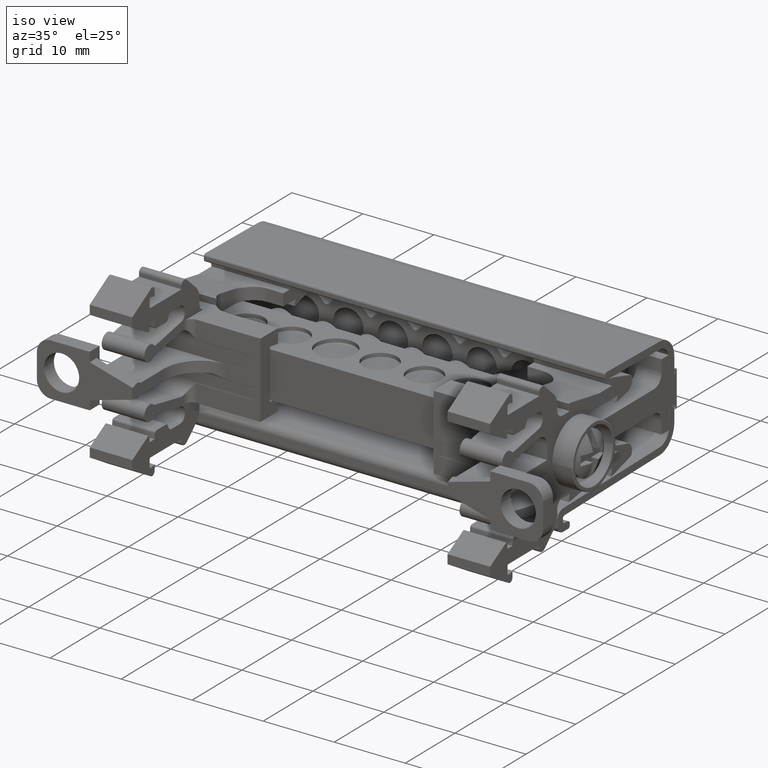
[diagram: clean part render]
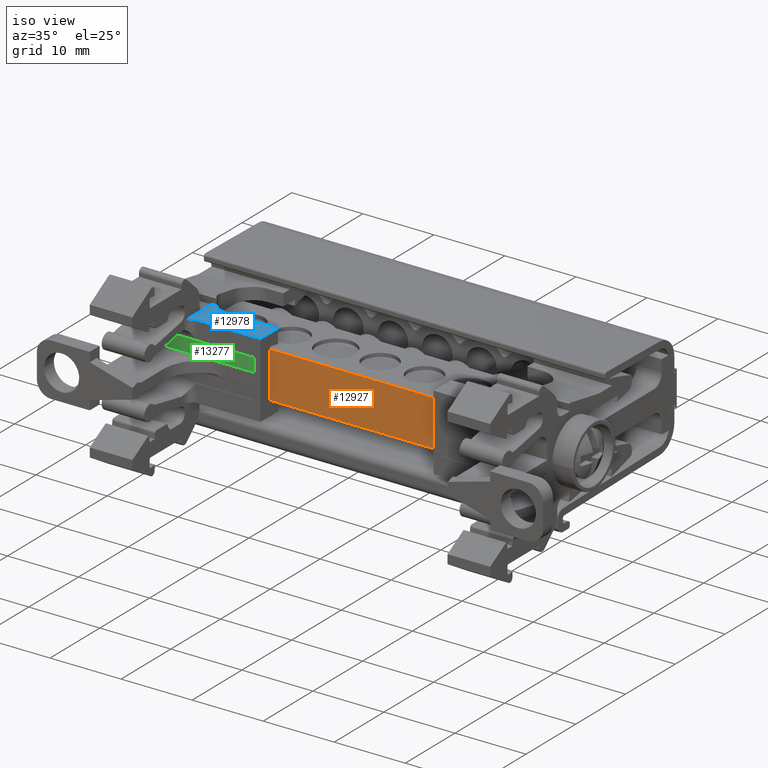
[diagram: same view with three faces highlighted in distinct colors, each labeled with its STEP entity id]
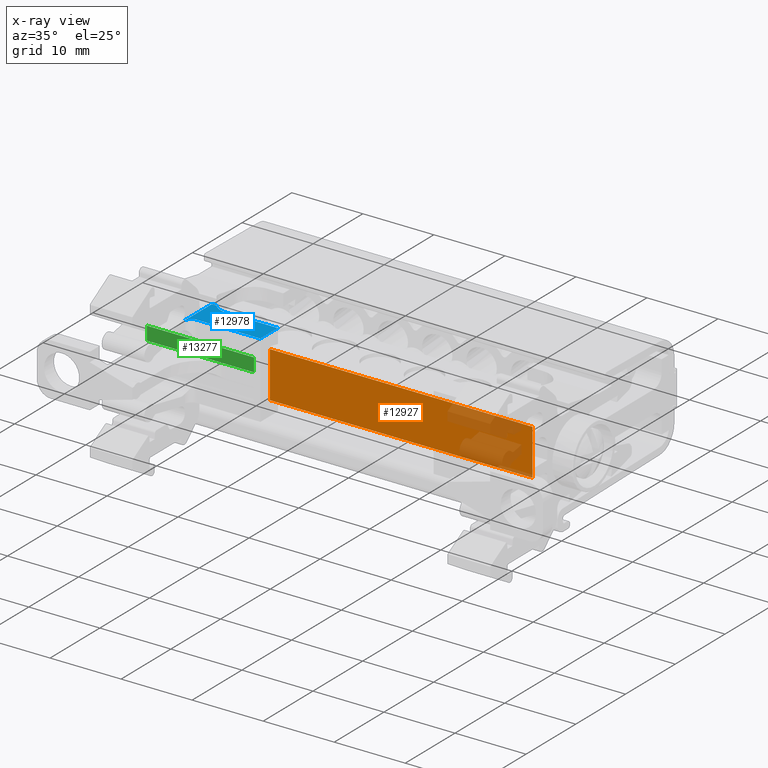
[diagram: x-ray of the same camera — body ghosted, the three highlighted faces saturated]
A machine part, iso view with three faces highlighted in distinct colors.
The next image is the same camera in x-ray (body ghosted, the three faces saturated) — at least one of them is partly hidden behind the body in this view.
Their STEP definitions:

[orange] entity #12927 — the highlighted planar face has unit normal (-0, 1, 0).
#2868 = CARTESIAN_POINT ( 'NONE',  ( -30.30539649368613200, -45.41391012922301900, 99.25723811290633600 ) ) ;
#2884 = CARTESIAN_POINT ( 'NONE',  ( -67.27539649368665700, -45.41391012922269300, 99.25723811290677600 ) ) ;
#2897 = CARTESIAN_POINT ( 'NONE',  ( -30.30539649368614300, -45.41391012922206000, 92.75723811290636400 ) ) ;
#2973 = CARTESIAN_POINT ( 'NONE',  ( -67.27539649368664200, -45.41391012922238000, 92.75723811290680500 ) ) ;
#7270 = DIRECTION ( 'NONE',  ( -0.0000000000000000000, 1.302377009656390000E-013, -1.000000000000000000 ) ) ;
#7282 = LINE ( 'NONE', #7287, #9891 ) ;
#7287 = CARTESIAN_POINT ( 'NONE',  ( -30.30539649368613200, -45.41391012922277800, 99.25723811290686200 ) ) ;
#9891 = VECTOR ( 'NONE', #7270, 1000.000000000000000 ) ;
#10002 = VECTOR ( 'NONE', #27872, 1000.000000000000000 ) ;
#10009 = VECTOR ( 'NONE', #27193, 1000.000000000000000 ) ;
#10021 = VECTOR ( 'NONE', #28272, 1000.000000000000000 ) ;
#10702 = AXIS2_PLACEMENT_3D ( 'NONE', #29458, #29470, #29442 ) ;
#12927 = ADVANCED_FACE ( 'NONE', ( #29457 ), #29452, .F. ) ;
#15646 = EDGE_CURVE ( 'NONE', #24335, #24342, #7282, .T. ) ;
#15768 = EDGE_CURVE ( 'NONE', #24342, #24391, #27892, .T. ) ;
#15836 = EDGE_CURVE ( 'NONE', #24335, #24369, #28250, .T. ) ;
#15860 = EDGE_CURVE ( 'NONE', #24391, #24369, #27187, .T. ) ;
#19278 = EDGE_LOOP ( 'NONE', ( #25102, #25191, #25137, #25222 ) ) ;
#24335 = VERTEX_POINT ( 'NONE', #2868 ) ;
#24342 = VERTEX_POINT ( 'NONE', #2897 ) ;
#24369 = VERTEX_POINT ( 'NONE', #2884 ) ;
#24391 = VERTEX_POINT ( 'NONE', #2973 ) ;
#25102 = ORIENTED_EDGE ( 'NONE', *, *, #15768, .F. ) ;
#25137 = ORIENTED_EDGE ( 'NONE', *, *, #15836, .T. ) ;
#25191 = ORIENTED_EDGE ( 'NONE', *, *, #15646, .F. ) ;
#25222 = ORIENTED_EDGE ( 'NONE', *, *, #15860, .F. ) ;
#27187 = LINE ( 'NONE', #27191, #10009 ) ;
#27191 = CARTESIAN_POINT ( 'NONE',  ( -67.27539649368665700, -45.41391012922245800, 99.35113534996816000 ) ) ;
#27193 = DIRECTION ( 'NONE',  ( -2.589419078425441900E-015, -2.909484798123462100E-029, 1.000000000000000000 ) ) ;
#27872 = DIRECTION ( 'NONE',  ( -1.000000000000000000, -1.432825211818514800E-027, 1.100161628464666200E-014 ) ) ;
#27892 = LINE ( 'NONE', #27920, #10002 ) ;
#27920 = CARTESIAN_POINT ( 'NONE',  ( -79.50539649368482700, -45.41391012922218800, 92.75723811290691900 ) ) ;
#28250 = LINE ( 'NONE', #28255, #10021 ) ;
#28255 = CARTESIAN_POINT ( 'NONE',  ( -79.50539649368472800, -45.41391012922313300, 99.25723811290686200 ) ) ;
#28272 = DIRECTION ( 'NONE',  ( -1.000000000000000000, -1.432825211818514800E-027, 1.100161628464666200E-014 ) ) ;
#29442 = DIRECTION ( 'NONE',  ( 0.0000000000000000000, -1.302377009656390000E-013, 1.000000000000000000 ) ) ;
#29452 = PLANE ( 'NONE',  #10702 ) ;
#29457 = FACE_OUTER_BOUND ( 'NONE', #19278, .T. ) ;
#29458 = CARTESIAN_POINT ( 'NONE',  ( -79.50539649368462800, -45.41391012922331800, 99.25723811290686200 ) ) ;
#29470 = DIRECTION ( 'NONE',  ( -1.100161628464522500E-014, 1.000000000000000000, 1.302377009656390000E-013 ) ) ;

[blue] entity #12978 — the highlighted planar face has unit normal (-0, 0, 1).
#2791 = CARTESIAN_POINT ( 'NONE',  ( -77.27539649368678500, -42.80570166464866600, 101.3154422156379900 ) ) ;
#2806 = CARTESIAN_POINT ( 'NONE',  ( -77.27539649368655700, -44.59739654058903100, 101.3154422156382400 ) ) ;
#2883 = CARTESIAN_POINT ( 'NONE',  ( -67.27539649368662800, -47.31558989761871500, 101.3154422156382000 ) ) ;
#2894 = CARTESIAN_POINT ( 'NONE',  ( -74.50339649368673600, -43.78758989761734500, 101.3154422156381300 ) ) ;
#2900 = CARTESIAN_POINT ( 'NONE',  ( -76.26739649368663300, -47.31558989761842300, 101.3154422156383600 ) ) ;
#2901 = CARTESIAN_POINT ( 'NONE',  ( -77.27539649368641500, -48.32358989761763000, 101.3154422156386300 ) ) ;
#2905 = CARTESIAN_POINT ( 'NONE',  ( -67.27539649368664200, -43.78758989761751500, 101.3154422156381400 ) ) ;
#2912 = CARTESIAN_POINT ( 'NONE',  ( -76.61987561277477700, -42.80570166464865900, 101.3154422156379700 ) ) ;
#9805 = VECTOR ( 'NONE', #16329, 1000.000000000000000 ) ;
#9897 = VECTOR ( 'NONE', #27810, 1000.000000000000000 ) ;
#9949 = VECTOR ( 'NONE', #27935, 1000.000000000000000 ) ;
#9969 = VECTOR ( 'NONE', #28145, 1000.000000000000000 ) ;
#9978 = VECTOR ( 'NONE', #27912, 1000.000000000000000 ) ;
#10041 = VECTOR ( 'NONE', #27134, 1000.000000000000000 ) ;
#10756 = AXIS2_PLACEMENT_3D ( 'NONE', #28555, #28571, #28598 ) ;
#12978 = ADVANCED_FACE ( 'NONE', ( #28554 ), #28582, .T. ) ;
#15468 = EDGE_CURVE ( 'NONE', #24251, #24285, #16323, .T. ) ;
#15740 = EDGE_CURVE ( 'NONE', #24350, #24251, #27781, .T. ) ;
#15766 = EDGE_CURVE ( 'NONE', #24364, #24360, #27890, .T. ) ;
#15772 = EDGE_CURVE ( 'NONE', #24364, #24365, #27941, .T. ) ;
#15808 = EDGE_CURVE ( 'NONE', #24365, #24350, #18345, .T. ) ;
#15823 = EDGE_CURVE ( 'NONE', #24360, #24349, #28179, .T. ) ;
#15844 = EDGE_CURVE ( 'NONE', #24354, #24285, #27097, .T. ) ;
#15849 = EDGE_CURVE ( 'NONE', #24354, #24349, #18313, .T. ) ;
#16297 = CARTESIAN_POINT ( 'NONE',  ( -77.27539649368678500, -49.67006088806910900, 101.3154422156389100 ) ) ;
#16323 = LINE ( 'NONE', #16297, #9805 ) ;
#16329 = DIRECTION ( 'NONE',  ( 0.0000000000000000000, -1.000000000000000000, 1.383348239789809800E-013 ) ) ;
#18313 = B_SPLINE_CURVE_WITH_KNOTS ( 'NONE', 3,
 ( #27099, #27140, #27107, #27110, #27116, #27117, #27177, #27188, #27164, #27154, #27145, #27189, #27167, #27173, #27186, #27143, #27155, #27159 ),
 .UNSPECIFIED., .F., .F.,
 ( 4, 1, 1, 2, 2, 2, 1, 1, 2, 2, 4 ),
 ( 0.0000000000000000000, 0.1249999999999256200, 0.1874999999998977800, 0.2187499999998942800, 0.2499999999998908100, 0.4999999999998696600, 0.6249999999998634400, 0.6874999999998496800, 0.7187499999998540100, 0.7499999999998584500, 1.000000000000000000 ),
 .UNSPECIFIED. ) ;
#18345 = B_SPLINE_CURVE_WITH_KNOTS ( 'NONE', 3,
 ( #28065, #28057, #28024, #28025, #28067, #28042 ),
 .UNSPECIFIED., .F., .F.,
 ( 4, 2, 4 ),
 ( 0.0000000000000000000, 0.5000000000000000000, 1.000000000000000000 ),
 .UNSPECIFIED. ) ;
#19329 = EDGE_LOOP ( 'NONE', ( #25107, #25113, #25108, #25123, #25213, #25115, #25119, #25146 ) ) ;
#24251 = VERTEX_POINT ( 'NONE', #2791 ) ;
#24285 = VERTEX_POINT ( 'NONE', #2806 ) ;
#24349 = VERTEX_POINT ( 'NONE', #2900 ) ;
#24350 = VERTEX_POINT ( 'NONE', #2912 ) ;
#24354 = VERTEX_POINT ( 'NONE', #2901 ) ;
#24360 = VERTEX_POINT ( 'NONE', #2883 ) ;
#24364 = VERTEX_POINT ( 'NONE', #2905 ) ;
#24365 = VERTEX_POINT ( 'NONE', #2894 ) ;
#25107 = ORIENTED_EDGE ( 'NONE', *, *, #15844, .F. ) ;
#25108 = ORIENTED_EDGE ( 'NONE', *, *, #15823, .F. ) ;
#25113 = ORIENTED_EDGE ( 'NONE', *, *, #15849, .T. ) ;
#25115 = ORIENTED_EDGE ( 'NONE', *, *, #15808, .T. ) ;
#25119 = ORIENTED_EDGE ( 'NONE', *, *, #15740, .T. ) ;
#25123 = ORIENTED_EDGE ( 'NONE', *, *, #15766, .F. ) ;
#25146 = ORIENTED_EDGE ( 'NONE', *, *, #15468, .T. ) ;
#25213 = ORIENTED_EDGE ( 'NONE', *, *, #15772, .T. ) ;
#27097 = LINE ( 'NONE', #27098, #10041 ) ;
#27098 = CARTESIAN_POINT ( 'NONE',  ( -77.27539649368624500, -50.22354764343166500, 101.3154422156385700 ) ) ;
#27099 = CARTESIAN_POINT ( 'NONE',  ( -77.27539649368641500, -48.32358989761763000, 101.3154422156386300 ) ) ;
#27107 = CARTESIAN_POINT ( 'NONE',  ( -77.26632231828985200, -48.16475929203948400, 101.3154422156387300 ) ) ;
#27110 = CARTESIAN_POINT ( 'NONE',  ( -77.24057639426293100, -48.05759715431879900, 101.3154422156386800 ) ) ;
#27116 = CARTESIAN_POINT ( 'NONE',  ( -77.22626148676187100, -48.01235047829671000, 101.3154422156387100 ) ) ;
#27117 = CARTESIAN_POINT ( 'NONE',  ( -77.21598911730313800, -47.98233712859966000, 101.3154422156387000 ) ) ;
#27134 = DIRECTION ( 'NONE',  ( -2.223766850332527500E-014, 1.000000000000000000, 0.0000000000000000000 ) ) ;
#27140 = CARTESIAN_POINT ( 'NONE',  ( -77.27526649292620700, -48.25933237066144000, 101.3154422156388300 ) ) ;
#27143 = CARTESIAN_POINT ( 'NONE',  ( -76.52028961594165000, -47.33944209680681300, 101.3154422156386300 ) ) ;
#27145 = CARTESIAN_POINT ( 'NONE',  ( -76.85185867120826200, -47.49700812073623300, 101.3154422156385800 ) ) ;
#27154 = CARTESIAN_POINT ( 'NONE',  ( -76.93125387947138400, -47.56182039364382100, 101.3154422156386100 ) ) ;
#27155 = CARTESIAN_POINT ( 'NONE',  ( -76.39660979352883900, -47.31585096596403200, 101.3154422156386100 ) ) ;
#27159 = CARTESIAN_POINT ( 'NONE',  ( -76.26739649368663300, -47.31558989761842300, 101.3154422156383600 ) ) ;
#27164 = CARTESIAN_POINT ( 'NONE',  ( -77.07797262842507300, -47.70883799925677200, 101.3154422156386500 ) ) ;
#27167 = CARTESIAN_POINT ( 'NONE',  ( -76.70218030196755900, -47.41399018934951900, 101.3154422156386300 ) ) ;
#27173 = CARTESIAN_POINT ( 'NONE',  ( -76.67068537105795700, -47.39963320662937500, 101.3154422156386300 ) ) ;
#27177 = CARTESIAN_POINT ( 'NONE',  ( -77.21098181208017800, -47.96865575854717900, 101.3154422156386700 ) ) ;
#27186 = CARTESIAN_POINT ( 'NONE',  ( -76.65320425404796400, -47.39222843931408800, 101.3154422156386100 ) ) ;
#27188 = CARTESIAN_POINT ( 'NONE',  ( -77.15375341377539100, -47.82370780503478600, 101.3154422156386700 ) ) ;
#27189 = CARTESIAN_POINT ( 'NONE',  ( -76.74866821910863700, -47.43661272966707500, 101.3154422156386300 ) ) ;
#27781 = LINE ( 'NONE', #27783, #9897 ) ;
#27783 = CARTESIAN_POINT ( 'NONE',  ( 0.3506835063133428900, -42.80570166464865900, 101.3154422156381700 ) ) ;
#27810 = DIRECTION ( 'NONE',  ( -1.000000000000000000, -3.582068324220139400E-028, -2.589419078426998300E-015 ) ) ;
#27873 = CARTESIAN_POINT ( 'NONE',  ( -67.27539649368665700, -45.09798989761764400, 101.3154422156381700 ) ) ;
#27890 = LINE ( 'NONE', #27873, #9978 ) ;
#27912 = DIRECTION ( 'NONE',  ( 1.123605221868004500E-014, -1.000000000000000000, -0.0000000000000000000 ) ) ;
#27935 = DIRECTION ( 'NONE',  ( -1.000000000000000000, -3.582068324220139400E-028, -2.589419078426998300E-015 ) ) ;
#27941 = LINE ( 'NONE', #27952, #9949 ) ;
#27952 = CARTESIAN_POINT ( 'NONE',  ( 0.3506835063133428900, -43.78758989761743700, 101.3154422156382900 ) ) ;
#28024 = CARTESIAN_POINT ( 'NONE',  ( -75.30096214683675300, -43.70118815242754100, 101.3154422156381300 ) ) ;
#28025 = CARTESIAN_POINT ( 'NONE',  ( -76.03898072075833200, -43.35914143540855300, 101.3154422156380400 ) ) ;
#28042 = CARTESIAN_POINT ( 'NONE',  ( -76.61987561277477700, -42.80570166464865900, 101.3154422156379700 ) ) ;
#28057 = CARTESIAN_POINT ( 'NONE',  ( -74.91150194809206700, -43.78727547389787100, 101.3154422156381100 ) ) ;
#28065 = CARTESIAN_POINT ( 'NONE',  ( -74.50339649368673600, -43.78758989761734500, 101.3154422156381300 ) ) ;
#28067 = CARTESIAN_POINT ( 'NONE',  ( -76.35561544708409100, -43.11765372565208300, 101.3154422156380100 ) ) ;
#28145 = DIRECTION ( 'NONE',  ( -1.000000000000000000, -1.123605221868040500E-014, -1.559315484883650500E-027 ) ) ;
#28179 = LINE ( 'NONE', #28180, #9969 ) ;
#28180 = CARTESIAN_POINT ( 'NONE',  ( -84.33139649368658300, -47.31558989761906300, 101.3154422156382100 ) ) ;
#28554 = FACE_OUTER_BOUND ( 'NONE', #19329, .T. ) ;
#28555 = CARTESIAN_POINT ( 'NONE',  ( 0.3506835063133428900, -49.67006088806910900, 101.3154422156391100 ) ) ;
#28571 = DIRECTION ( 'NONE',  ( -2.589419078426998300E-015, 1.383348239789809800E-013, 1.000000000000000000 ) ) ;
#28582 = PLANE ( 'NONE',  #10756 ) ;
#28598 = DIRECTION ( 'NONE',  ( 0.0000000000000000000, -1.000000000000000000, 1.383348239789809800E-013 ) ) ;

[green] entity #13277 — the highlighted planar face has unit normal (-0, 1, -0).
#740 = PLANE ( 'NONE',  #9231 ) ;
#741 = FACE_OUTER_BOUND ( 'NONE', #18717, .T. ) ;
#743 = CARTESIAN_POINT ( 'NONE',  ( -83.27539649368617300, -47.29758991561595800, 68.30975947004790800 ) ) ;
#747 = DIRECTION ( 'NONE',  ( -1.122594556886346500E-014, 1.000000000000000000, -2.963757030512046000E-029 ) ) ;
#783 = DIRECTION ( 'NONE',  ( -1.000000000000000000, -1.122594556886346500E-014, 0.0000000000000000000 ) ) ;
#1525 = CARTESIAN_POINT ( 'NONE',  ( -83.27539649368625900, -47.29758991329795500, 97.40468187076285700 ) ) ;
#1542 = CARTESIAN_POINT ( 'NONE',  ( -83.27539649368625900, -47.29758991561592300, 96.76944204099014300 ) ) ;
#1543 = CARTESIAN_POINT ( 'NONE',  ( -83.27539649368625900, -47.29758991097997300, 98.03992170053557200 ) ) ;
#1562 = CARTESIAN_POINT ( 'NONE',  ( -83.27539649368625900, -47.29758990588040000, 98.67516153030830100 ) ) ;
#1691 = LINE ( 'NONE', #1729, #11099 ) ;
#1693 = DIRECTION ( 'NONE',  ( -1.000000000000000000, -1.122594556886346500E-014, 0.0000000000000000000 ) ) ;
#1729 = CARTESIAN_POINT ( 'NONE',  ( -83.27539649368617300, -47.29758991561595800, 96.76944204099015700 ) ) ;
#2998 = CARTESIAN_POINT ( 'NONE',  ( -68.19539649368670100, -47.29758991561580200, 96.76944204099015700 ) ) ;
#3024 = CARTESIAN_POINT ( 'NONE',  ( -68.19539649368670100, -47.29758990909640900, 98.67516153030831600 ) ) ;
#3044 = CARTESIAN_POINT ( 'NONE',  ( -77.27539649368637200, -47.29758990257719400, 98.67516153030831600 ) ) ;
#6393 = EDGE_CURVE ( 'NONE', #24499, #18221, #26344, .T. ) ;
#6443 = EDGE_CURVE ( 'NONE', #18201, #18221, #17415, .T. ) ;
#6465 = EDGE_CURVE ( 'NONE', #24480, #18201, #1691, .T. ) ;
#9231 = AXIS2_PLACEMENT_3D ( 'NONE', #743, #747, #783 ) ;
#9597 = VECTOR ( 'NONE', #31989, 1000.000000000000000 ) ;
#9617 = VECTOR ( 'NONE', #32002, 1000.000000000000000 ) ;
#11088 = VECTOR ( 'NONE', #26333, 1000.000000000000000 ) ;
#11099 = VECTOR ( 'NONE', #1693, 1000.000000000000000 ) ;
#13277 = ADVANCED_FACE ( 'NONE', ( #741 ), #740, .F. ) ;
#14049 = ORIENTED_EDGE ( 'NONE', *, *, #6393, .T. ) ;
#14059 = ORIENTED_EDGE ( 'NONE', *, *, #15007, .F. ) ;
#14076 = ORIENTED_EDGE ( 'NONE', *, *, #6465, .F. ) ;
#14080 = ORIENTED_EDGE ( 'NONE', *, *, #15020, .F. ) ;
#14116 = ORIENTED_EDGE ( 'NONE', *, *, #6443, .F. ) ;
#15007 = EDGE_CURVE ( 'NONE', #24499, #24458, #31979, .T. ) ;
#15020 = EDGE_CURVE ( 'NONE', #24458, #24480, #32050, .T. ) ;
#17415 = B_SPLINE_CURVE_WITH_KNOTS ( 'NONE', 3,
 ( #1542, #1525, #1543, #1562 ),
 .UNSPECIFIED., .F., .F.,
 ( 4, 4 ),
 ( 0.0000000000000000000, 1.000000000000000000 ),
 .UNSPECIFIED. ) ;
#18201 = VERTEX_POINT ( 'NONE', #27266 ) ;
#18221 = VERTEX_POINT ( 'NONE', #27268 ) ;
#18717 = EDGE_LOOP ( 'NONE', ( #14076, #14080, #14059, #14049, #14116 ) ) ;
#24458 = VERTEX_POINT ( 'NONE', #3024 ) ;
#24480 = VERTEX_POINT ( 'NONE', #2998 ) ;
#24499 = VERTEX_POINT ( 'NONE', #3044 ) ;
#26321 = CARTESIAN_POINT ( 'NONE',  ( -80.27539649368627300, -47.29758989823099600, 98.67516153030831600 ) ) ;
#26333 = DIRECTION ( 'NONE',  ( -1.000000000000000000, -1.156482317317870300E-014, -2.312964634635740700E-015 ) ) ;
#26344 = LINE ( 'NONE', #26321, #11088 ) ;
#27266 = CARTESIAN_POINT ( 'NONE',  ( -83.27539649368625900, -47.29758991561592300, 96.76944204099014300 ) ) ;
#27268 = CARTESIAN_POINT ( 'NONE',  ( -83.27539649368625900, -47.29758990588040000, 98.67516153030830100 ) ) ;
#31979 = LINE ( 'NONE', #31988, #9597 ) ;
#31988 = CARTESIAN_POINT ( 'NONE',  ( -83.27539649368617300, -47.29758991561595800, 98.67516153030831600 ) ) ;
#31989 = DIRECTION ( 'NONE',  ( 1.000000000000000000, 1.122594556886346500E-014, -0.0000000000000000000 ) ) ;
#32000 = CARTESIAN_POINT ( 'NONE',  ( -68.19539649368670100, -47.29758991561579500, 68.30975947004790800 ) ) ;
#32002 = DIRECTION ( 'NONE',  ( 3.327097510386464700E-043, -2.963757030512046000E-029, -1.000000000000000000 ) ) ;
#32050 = LINE ( 'NONE', #32000, #9617 ) ;